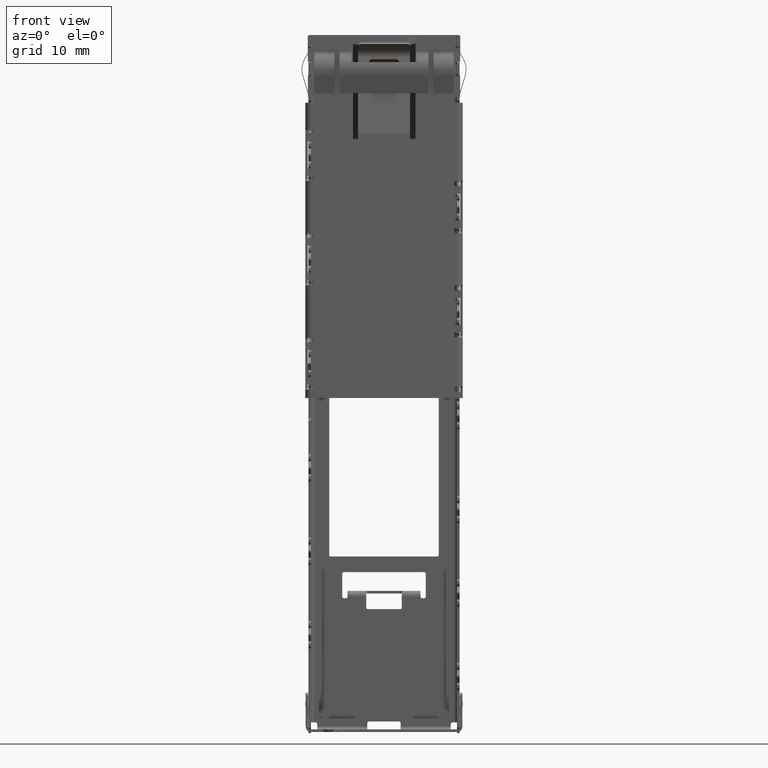
[diagram: clean part render]
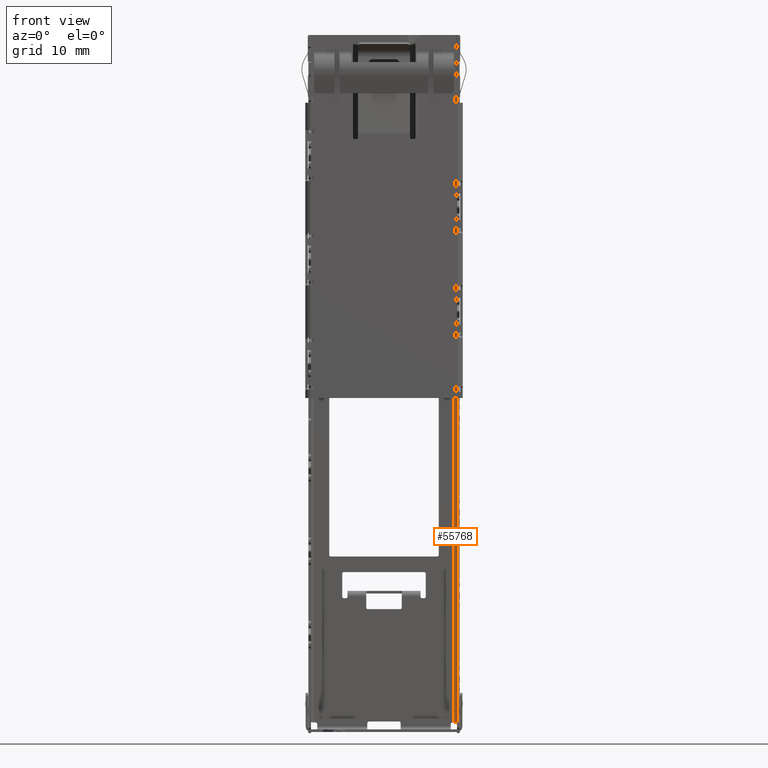
[diagram: same view with one face highlighted and labeled with its STEP entity id]
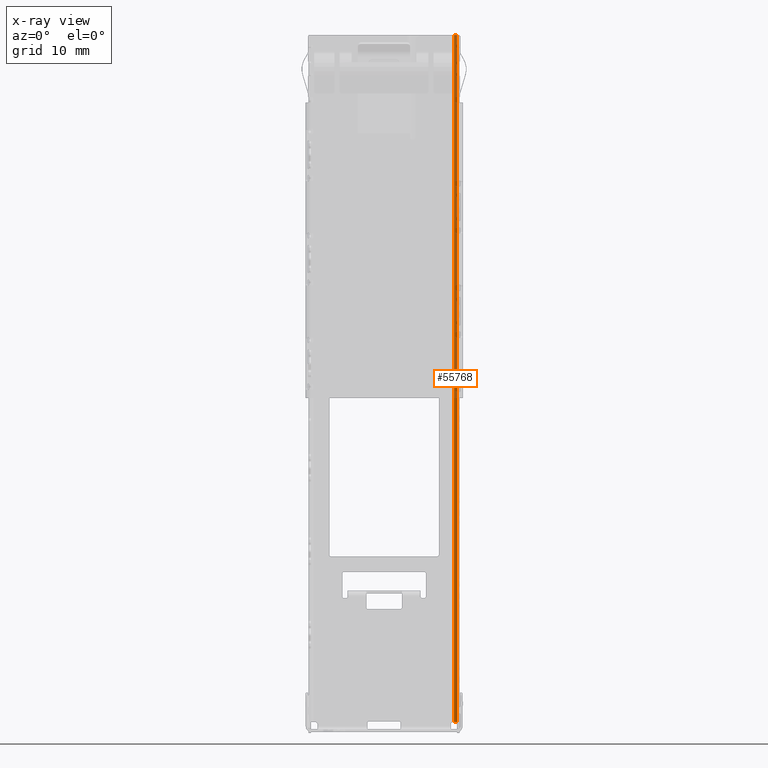
[diagram: x-ray of the same camera — body ghosted, the highlighted face saturated]
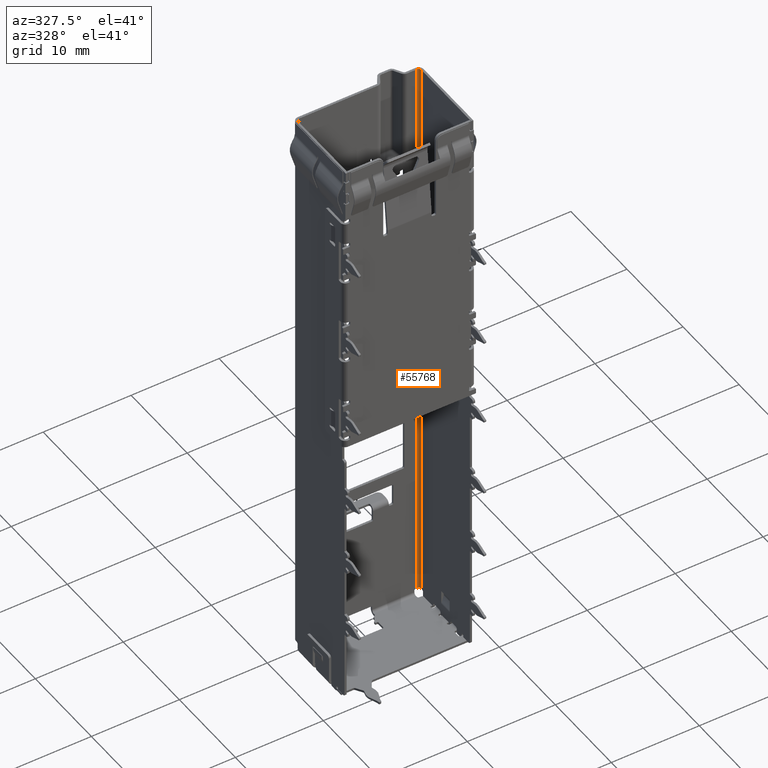
[diagram: same view with one face highlighted and labeled with its STEP entity id]
A machine part, front view. The second image highlights one B-rep face of the part: STEP entity #55768.
The next image is the same camera in x-ray: the body ghosted, the highlighted face saturated — about 48% of this face is hidden behind the body in this view.
A second angle (auxiliary view) of the same face is appended — the face is thin or edge-on in the first view.
In plain terms, the highlighted cylindrical surface (edge-blend (fillet) strip) has radius 0.3 mm, axis along (0, 0, 1).
Its self-contained STEP definition (entity closure, byte-faithful):
#3841 = DIRECTION ( 'NONE',  ( 0.0000000000000000000, 0.0000000000000000000, 1.000000000000000000 ) ) ;
#4291 = AXIS2_PLACEMENT_3D ( 'NONE', #26147, #20840, #12680 ) ;
#4303 = CIRCLE ( 'NONE', #4291, 0.3000000000000016542 ) ;
#4772 = CARTESIAN_POINT ( 'NONE',  ( 6.699999999999998401, 9.500000000000005329, 0.0000000000000000000 ) ) ;
#5923 = EDGE_CURVE ( 'NONE', #39767, #41408, #4303, .T. ) ;
#6860 = EDGE_CURVE ( 'NONE', #35699, #41408, #9026, .T. ) ;
#6899 = ORIENTED_EDGE ( 'NONE', *, *, #5923, .T. ) ;
#7651 = VECTOR ( 'NONE', #53524, 1000.000000000000000 ) ;
#7912 = LINE ( 'NONE', #21350, #43560 ) ;
#9026 = LINE ( 'NONE', #22199, #7651 ) ;
#9207 = DIRECTION ( 'NONE',  ( -0.0000000000000000000, -0.0000000000000000000, -1.000000000000000000 ) ) ;
#10871 = VERTEX_POINT ( 'NONE', #46667 ) ;
#11706 = AXIS2_PLACEMENT_3D ( 'NONE', #13529, #9207, #18192 ) ;
#12680 = DIRECTION ( 'NONE',  ( 1.000000000000000000, 0.0000000000000000000, 0.0000000000000000000 ) ) ;
#13529 = CARTESIAN_POINT ( 'NONE',  ( 6.699999999999998401, 9.200000000000002842, -65.90000000000000568 ) ) ;
#15783 = CIRCLE ( 'NONE', #11706, 0.3000000000000016542 ) ;
#17906 = ORIENTED_EDGE ( 'NONE', *, *, #18708, .T. ) ;
#18192 = DIRECTION ( 'NONE',  ( 1.000000000000000000, 0.0000000000000000000, 0.0000000000000000000 ) ) ;
#18708 = EDGE_CURVE ( 'NONE', #10871, #39767, #7912, .T. ) ;
#20840 = DIRECTION ( 'NONE',  ( 0.0000000000000000000, 0.0000000000000000000, 1.000000000000000000 ) ) ;
#21350 = CARTESIAN_POINT ( 'NONE',  ( 7.000000000000000000, 9.200000000000002842, -65.90000000000000568 ) ) ;
#22199 = CARTESIAN_POINT ( 'NONE',  ( 6.699999999999998401, 9.500000000000005329, -65.90000000000000568 ) ) ;
#22359 = CYLINDRICAL_SURFACE ( 'NONE', #36221, 0.3000000000000016542 ) ;
#25658 = DIRECTION ( 'NONE',  ( 1.000000000000000000, 0.0000000000000000000, 0.0000000000000000000 ) ) ;
#26147 = CARTESIAN_POINT ( 'NONE',  ( 6.699999999999998401, 9.200000000000002842, 0.0000000000000000000 ) ) ;
#27317 = CARTESIAN_POINT ( 'NONE',  ( 7.000000000000000000, 9.200000000000002842, 0.0000000000000000000 ) ) ;
#28243 = ORIENTED_EDGE ( 'NONE', *, *, #6860, .F. ) ;
#35699 = VERTEX_POINT ( 'NONE', #36839 ) ;
#36221 = AXIS2_PLACEMENT_3D ( 'NONE', #38553, #52053, #25658 ) ;
#36839 = CARTESIAN_POINT ( 'NONE',  ( 6.699999999999998401, 9.500000000000003553, -65.90000000000000568 ) ) ;
#37101 = EDGE_LOOP ( 'NONE', ( #17906, #6899, #28243, #38236 ) ) ;
#37822 = EDGE_CURVE ( 'NONE', #35699, #10871, #15783, .T. ) ;
#38236 = ORIENTED_EDGE ( 'NONE', *, *, #37822, .T. ) ;
#38553 = CARTESIAN_POINT ( 'NONE',  ( 6.699999999999998401, 9.200000000000002842, -138.8773260181442311 ) ) ;
#39767 = VERTEX_POINT ( 'NONE', #27317 ) ;
#41408 = VERTEX_POINT ( 'NONE', #4772 ) ;
#43560 = VECTOR ( 'NONE', #3841, 1000.000000000000000 ) ;
#46667 = CARTESIAN_POINT ( 'NONE',  ( 7.000000000000000000, 9.200000000000002842, -65.90000000000000568 ) ) ;
#51069 = FACE_OUTER_BOUND ( 'NONE', #37101, .T. ) ;
#52053 = DIRECTION ( 'NONE',  ( 0.0000000000000000000, 0.0000000000000000000, 1.000000000000000000 ) ) ;
#53524 = DIRECTION ( 'NONE',  ( 0.0000000000000000000, 0.0000000000000000000, 1.000000000000000000 ) ) ;
#55768 = ADVANCED_FACE ( 'NONE', ( #51069 ), #22359, .F. ) ;